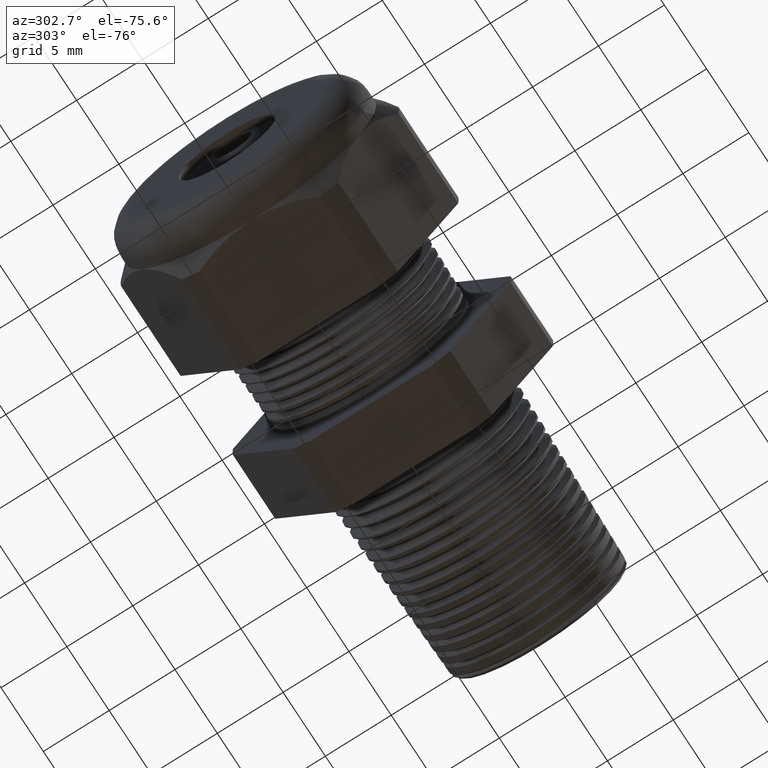
[diagram: clean part render]
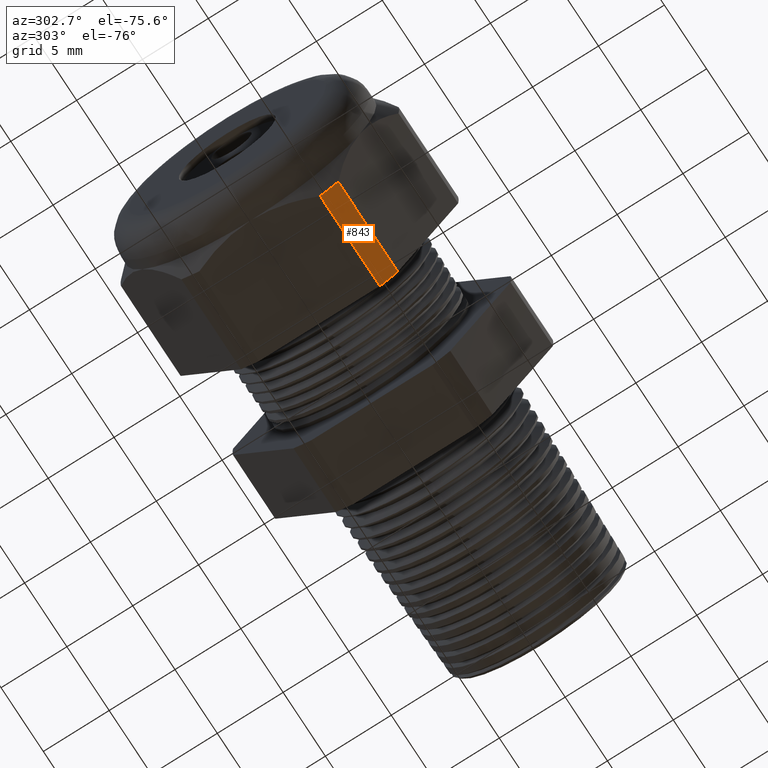
[diagram: same view with one face highlighted and labeled with its STEP entity id]
A machine part, auxiliary view. The second image highlights one B-rep face of the part: STEP entity #843.
In plain terms, the highlighted cylindrical surface (partial cylindrical patch) has radius 10.5727 mm, axis along (-1, 0, 0).
Its self-contained STEP definition (entity closure, byte-faithful):
#814 = EDGE_LOOP ( 'NONE', ( #815, #816, #819, #822 ) ) ;
#815 = ORIENTED_EDGE ( 'NONE', *, *, #839, .T. ) ;
#816 = ORIENTED_EDGE ( 'NONE', *, *, #817, .T. ) ;
#817 = EDGE_CURVE ( 'NONE', #837, #818, #3306, .T. ) ;
#818 = VERTEX_POINT ( 'NONE', #3297 ) ;
#819 = ORIENTED_EDGE ( 'NONE', *, *, #820, .F. ) ;
#820 = EDGE_CURVE ( 'NONE', #821, #818, #3296, .T. ) ;
#821 = VERTEX_POINT ( 'NONE', #3292 ) ;
#822 = ORIENTED_EDGE ( 'NONE', *, *, #823, .F. ) ;
#823 = EDGE_CURVE ( 'NONE', #840, #821, #3290, .T. ) ;
#837 = VERTEX_POINT ( 'NONE', #3322 ) ;
#839 = EDGE_CURVE ( 'NONE', #840, #837, #3315, .T. ) ;
#840 = VERTEX_POINT ( 'NONE', #3369 ) ;
#843 = ADVANCED_FACE ( 'NONE', ( #3364 ), #3363, .T. ) ;
#3286 = DIRECTION ( 'NONE',  ( 0.0000000000000000000, 0.0000000000000000000, -1.000000000000000000 ) ) ;
#3287 = DIRECTION ( 'NONE',  ( 1.000000000000000000, 0.0000000000000000000, 0.0000000000000000000 ) ) ;
#3288 = CARTESIAN_POINT ( 'NONE',  ( -0.7508661417322833900, 0.0000000000000000000, 0.0000000000000000000 ) ) ;
#3289 = AXIS2_PLACEMENT_3D ( 'NONE', #3288, #3287, #3286 ) ;
#3290 = CIRCLE ( 'NONE', #3289, 0.4162500000000000100 ) ;
#3292 = CARTESIAN_POINT ( 'NONE',  ( -0.7508661417322833900, -0.1806628420566883900, -0.3750000000000001100 ) ) ;
#3293 = DIRECTION ( 'NONE',  ( -1.000000000000000000, 0.0000000000000000000, 0.0000000000000000000 ) ) ;
#3294 = VECTOR ( 'NONE', #3293, 39.37007874015748100 ) ;
#3295 = CARTESIAN_POINT ( 'NONE',  ( 0.2800000000000000300, -0.1806628420566883900, -0.3750000000000001100 ) ) ;
#3296 = LINE ( 'NONE', #3295, #3294 ) ;
#3297 = CARTESIAN_POINT ( 'NONE',  ( -1.028513779527559200, -0.1806628420566883700, -0.3750000000000001100 ) ) ;
#3298 = DIRECTION ( 'NONE',  ( 0.0000000000000000000, 0.0000000000000000000, -1.000000000000000000 ) ) ;
#3299 = DIRECTION ( 'NONE',  ( 1.000000000000000000, 0.0000000000000000000, 0.0000000000000000000 ) ) ;
#3300 = CARTESIAN_POINT ( 'NONE',  ( -1.028513779527559200, 0.0000000000000000000, 0.0000000000000000000 ) ) ;
#3301 = AXIS2_PLACEMENT_3D ( 'NONE', #3300, #3299, #3298 ) ;
#3306 = CIRCLE ( 'NONE', #3301, 0.4162500000000000100 ) ;
#3313 = DIRECTION ( 'NONE',  ( -1.000000000000000000, 0.0000000000000000000, 0.0000000000000000000 ) ) ;
#3314 = CARTESIAN_POINT ( 'NONE',  ( 0.2800000000000000300, -0.2344281053908202100, -0.3439586107409880500 ) ) ;
#3315 = LINE ( 'NONE', #3314, #3370 ) ;
#3322 = CARTESIAN_POINT ( 'NONE',  ( -1.028513779527559200, -0.2344281053908201800, -0.3439586107409879900 ) ) ;
#3358 = DIRECTION ( 'NONE',  ( 0.0000000000000000000, 0.0000000000000000000, 1.000000000000000000 ) ) ;
#3359 = DIRECTION ( 'NONE',  ( -1.000000000000000000, 0.0000000000000000000, 0.0000000000000000000 ) ) ;
#3360 = CARTESIAN_POINT ( 'NONE',  ( 0.2800000000000000300, 0.0000000000000000000, 0.0000000000000000000 ) ) ;
#3361 = AXIS2_PLACEMENT_3D ( 'NONE', #3360, #3359, #3358 ) ;
#3363 = CYLINDRICAL_SURFACE ( 'NONE', #3361, 0.4162500000000000100 ) ;
#3364 = FACE_OUTER_BOUND ( 'NONE', #814, .T. ) ;
#3369 = CARTESIAN_POINT ( 'NONE',  ( -0.7508661417322833900, -0.2344281053908202100, -0.3439586107409880500 ) ) ;
#3370 = VECTOR ( 'NONE', #3313, 39.37007874015748100 ) ;